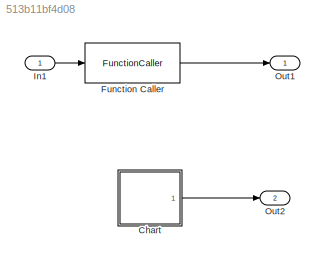
MODEL slx_513b11bf4d08
KIND model
CONFIG AbsTol = auto
CONFIG EnableMultiTasking = off
CONFIG FixedStep = auto
CONFIG MaxStep = auto
CONFIG MinStep = auto
CONFIG RelTol = 1e-3
CONFIG SampleTimeConstraint = Unconstrained
CONFIG Solver = VariableStepAuto
CONFIG SolverName = VariableStepAuto
CONFIG StartTime = 0.0
CONFIG StopTime = 10.0
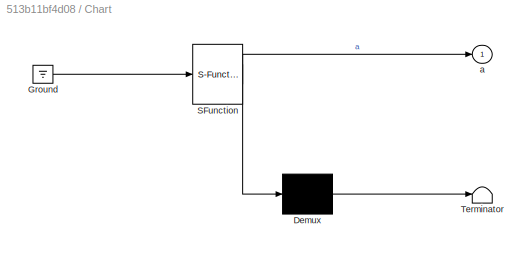
BLOCK [SubSystem] Chart
  ErrorFcn = Stateflow.Translate.translate
  PermitHierarchicalResolution = ExplicitOnly
  Ports = [0, 1]
  RequestExecContextInheritance = off
  SFBlockType = Chart
  TreatAsAtomicUnit = on
BLOCK [Demux] Chart/ Demux 
  Outputs = 1
  Ports = [1, 1]
BLOCK [Ground] Chart/ Ground 
BLOCK [S-Function] Chart/ SFunction 
  EnableBusSupport = on
  FunctionName = sf_sfun
  PortCounts = [1 2]
  Ports = [1, 2]
  SFcnIsStateOwnerBlock = off
  SFunctionDeploymentMode = off
  Tag = Stateflow S-Function RefModel1 3
BLOCK [Terminator] Chart/ Terminator 
BLOCK [Outport] Chart/a
  IconDisplay = Port number
BLOCK [FunctionCaller] Function Caller
  Commented = on
  FunctionPrototype = y = TopModel.f(u)
  InputArgumentSpecifications = double(1)
  OutputArgumentSpecifications = double(1)
  Ports = [1, 1]
BLOCK [Inport] In1
  IconDisplay = Port number
BLOCK [Outport] Out1
  IconDisplay = Port number
BLOCK [Outport] Out2
  IconDisplay = Port number
  Port = 2
LINE Chart:1 -> Out2:1
LINE Function Caller:1 -> Out1:1
LINE In1:1 -> Function Caller:1
CHART Chart states=1 transitions=1
  STATE_LABEL 'Init\nen:\na=TopModel.f(1);\na=TopModel.fnew(2);'
